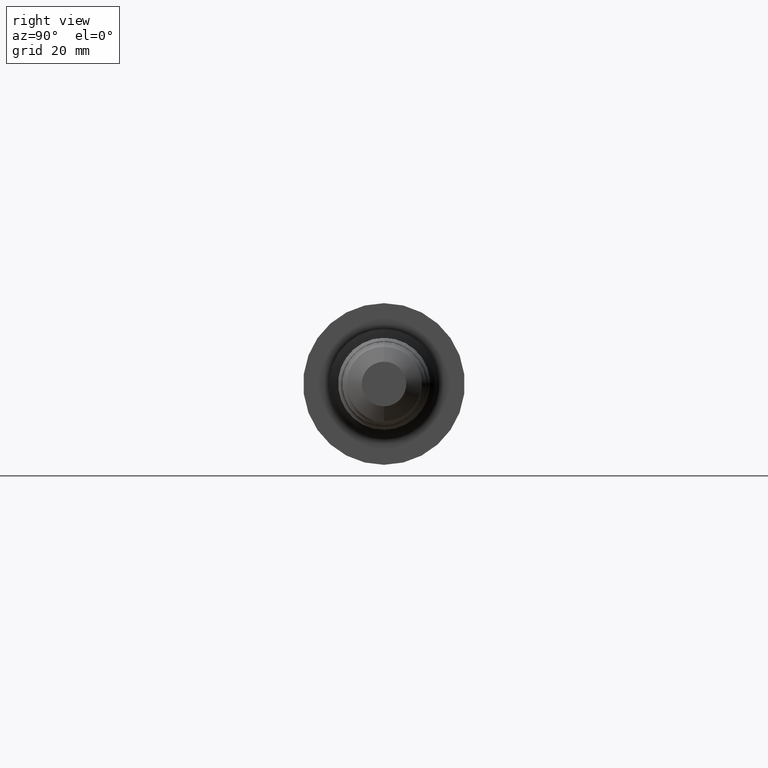
[diagram: clean part render]
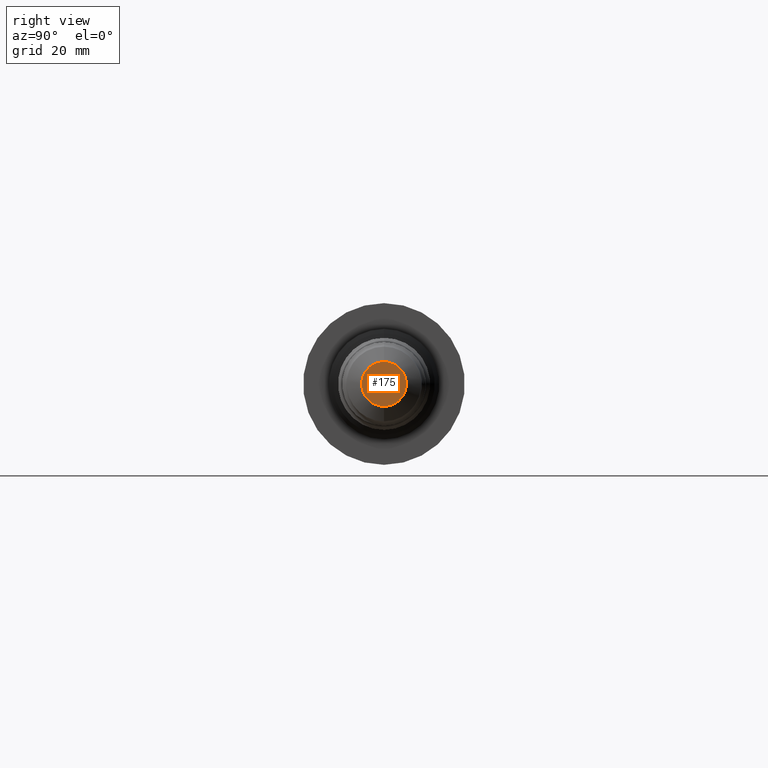
[diagram: same view with one face highlighted and labeled with its STEP entity id]
A machine part, right view. The second image highlights one B-rep face of the part: STEP entity #175.
In plain terms, the highlighted planar face has unit normal (-1, 0, -0).
Its self-contained STEP definition (entity closure, byte-faithful):
#74 = AXIS2_PLACEMENT_3D ( 'NONE', #770, #519, #821 ) ;
#85 = CIRCLE ( 'NONE', #74, 0.1606571346837140923 ) ;
#125 = DIRECTION ( 'NONE',  ( -1.000000000000000000, 0.0000000000000000000, -0.0000000000000000000 ) ) ;
#175 = ADVANCED_FACE ( 'NONE', ( #345 ), #784, .F. ) ;
#200 = EDGE_LOOP ( 'NONE', ( #428, #217 ) ) ;
#213 = VERTEX_POINT ( 'NONE', #683 ) ;
#217 = ORIENTED_EDGE ( 'NONE', *, *, #384, .F. ) ;
#290 = EDGE_CURVE ( 'NONE', #213, #443, #85, .T. ) ;
#332 = CARTESIAN_POINT ( 'NONE',  ( 5.000000000000000000, 0.1606571346837140923, 0.0000000000000000000 ) ) ;
#345 = FACE_OUTER_BOUND ( 'NONE', #200, .T. ) ;
#368 = CIRCLE ( 'NONE', #764, 0.1606571346837140923 ) ;
#379 = DIRECTION ( 'NONE',  ( -1.000000000000000000, -0.0000000000000000000, -0.0000000000000000000 ) ) ;
#384 = EDGE_CURVE ( 'NONE', #443, #213, #368, .T. ) ;
#428 = ORIENTED_EDGE ( 'NONE', *, *, #290, .F. ) ;
#443 = VERTEX_POINT ( 'NONE', #532 ) ;
#508 = AXIS2_PLACEMENT_3D ( 'NONE', #332, #125, #862 ) ;
#510 = DIRECTION ( 'NONE',  ( 0.0000000000000000000, 0.0000000000000000000, 1.000000000000000000 ) ) ;
#519 = DIRECTION ( 'NONE',  ( -1.000000000000000000, -0.0000000000000000000, -0.0000000000000000000 ) ) ;
#532 = CARTESIAN_POINT ( 'NONE',  ( 5.000000000000000000, 2.630278850206594524E-17, -0.1606571346837140923 ) ) ;
#683 = CARTESIAN_POINT ( 'NONE',  ( 5.000000000000000000, 0.0000000000000000000, 0.1606571346837140923 ) ) ;
#764 = AXIS2_PLACEMENT_3D ( 'NONE', #857, #379, #510 ) ;
#770 = CARTESIAN_POINT ( 'NONE',  ( 5.000000000000000000, 0.0000000000000000000, 0.0000000000000000000 ) ) ;
#784 = PLANE ( 'NONE',  #508 ) ;
#821 = DIRECTION ( 'NONE',  ( 0.0000000000000000000, 0.0000000000000000000, 1.000000000000000000 ) ) ;
#857 = CARTESIAN_POINT ( 'NONE',  ( 5.000000000000000000, 0.0000000000000000000, 0.0000000000000000000 ) ) ;
#862 = DIRECTION ( 'NONE',  ( -0.0000000000000000000, 0.0000000000000000000, 1.000000000000000000 ) ) ;